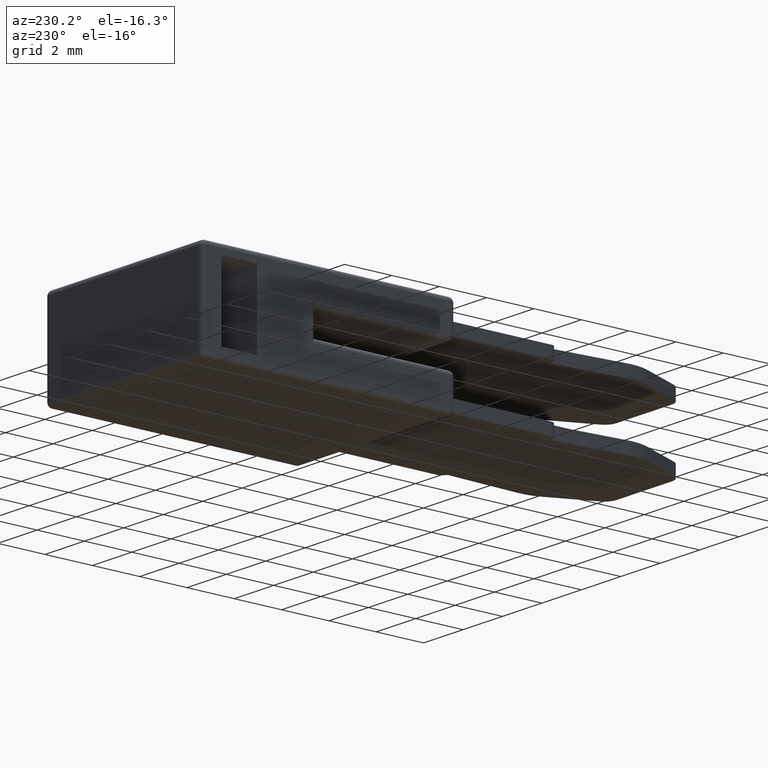
[diagram: clean part render]
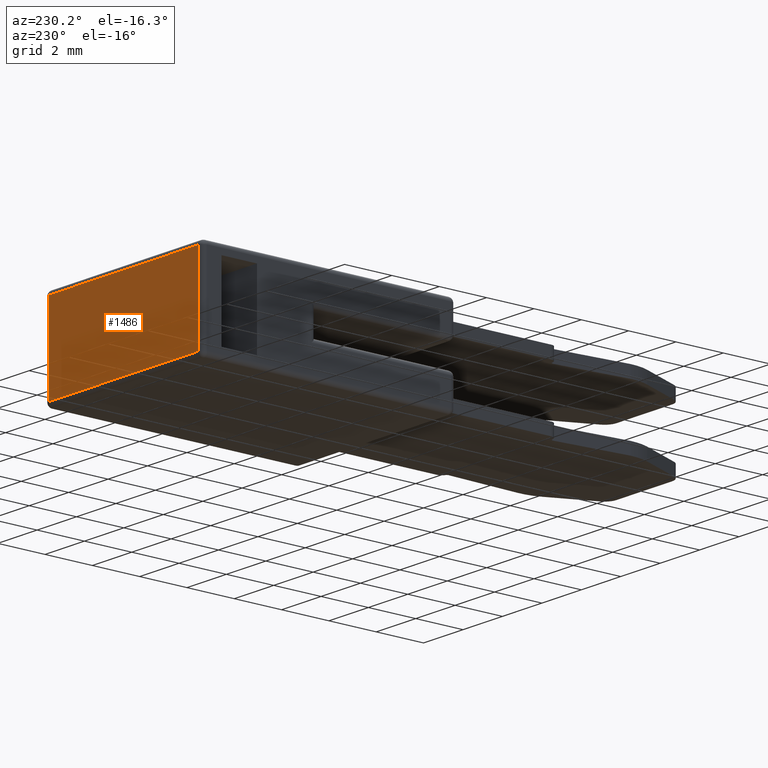
[diagram: same view with one face highlighted and labeled with its STEP entity id]
A machine part, auxiliary view. The second image highlights one B-rep face of the part: STEP entity #1486.
In plain terms, the highlighted planar face has unit normal (0, -1, 0).
Its self-contained STEP definition (entity closure, byte-faithful):
#124=DIRECTION('',(-1.E0,0.E0,0.E0));
#125=VECTOR('',#124,7.599999999359E0);
#126=CARTESIAN_POINT('',(3.800000000194E0,1.200449986889E1,1.799999999179E0));
#127=LINE('',#126,#125);
#132=DIRECTION('',(-4.651341041418E-11,-3.009937978322E-14,-1.E0));
#133=VECTOR('',#132,3.599999999463E0);
#134=CARTESIAN_POINT('',(-3.799999999165E0,1.200449986889E1,1.799999999179E0));
#135=LINE('',#134,#133);
#335=DIRECTION('',(0.E0,3.108624469270E-14,1.E0));
#336=VECTOR('',#335,3.599999999630E0);
#337=CARTESIAN_POINT('',(3.800000000194E0,1.200449986889E1,-1.800000000451E0));
#338=LINE('',#337,#336);
#358=DIRECTION('',(1.E0,0.E0,-2.203263887262E-11));
#359=VECTOR('',#358,7.599999999527E0);
#360=CARTESIAN_POINT('',(-3.799999999333E0,1.200449986889E1,-1.800000000284E0));
#361=LINE('',#360,#359);
#1054=CARTESIAN_POINT('',(-3.799999999165E0,1.200449986933E1,
-1.800000001054E0));
#1056=VERTEX_POINT('',#1054);
#1086=CARTESIAN_POINT('',(3.800000000195E0,1.200449986933E1,-1.799999999179E0));
#1087=VERTEX_POINT('',#1086);
#1135=CARTESIAN_POINT('',(3.800000000194E0,1.200449986889E1,1.799999999179E0));
#1136=VERTEX_POINT('',#1135);
#1194=CARTESIAN_POINT('',(-3.799999999165E0,1.200449986933E1,1.799999999179E0));
#1195=VERTEX_POINT('',#1194);
#1472=CARTESIAN_POINT('',(3.800000000193E0,1.200449986875E1,2.E0));
#1473=DIRECTION('',(0.E0,-1.E0,0.E0));
#1474=DIRECTION('',(0.E0,0.E0,-1.E0));
#1475=AXIS2_PLACEMENT_3D('',#1472,#1473,#1474);
#1476=PLANE('',#1475);
#1478=ORIENTED_EDGE('',*,*,#1477,.T.);
#1480=ORIENTED_EDGE('',*,*,#1479,.T.);
#1482=ORIENTED_EDGE('',*,*,#1481,.T.);
#1483=ORIENTED_EDGE('',*,*,#1462,.T.);
#1484=EDGE_LOOP('',(#1478,#1480,#1482,#1483));
#1485=FACE_OUTER_BOUND('',#1484,.F.);
#1486=ADVANCED_FACE('',(#1485),#1476,.F.);
#1462=EDGE_CURVE('',#1136,#1195,#127,.T.);
#1477=EDGE_CURVE('',#1195,#1056,#135,.T.);
#1479=EDGE_CURVE('',#1056,#1087,#361,.T.);
#1481=EDGE_CURVE('',#1087,#1136,#338,.T.);